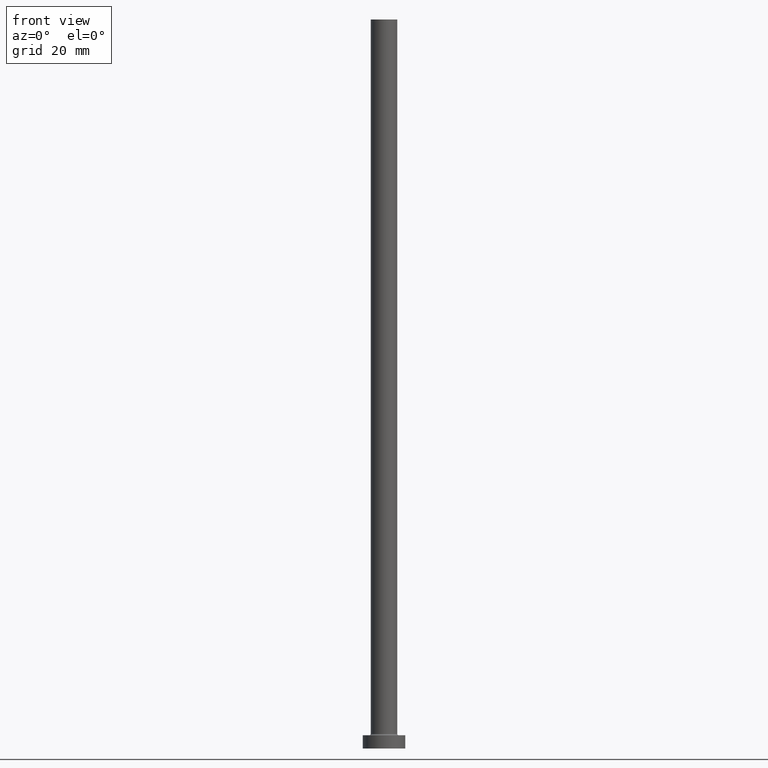
[diagram: clean part render]
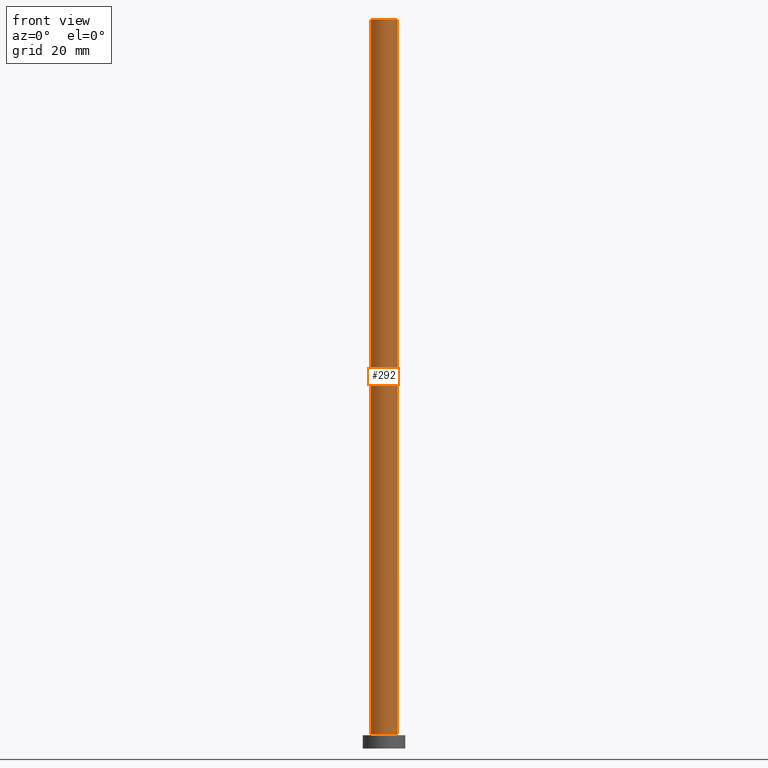
[diagram: same view with one face highlighted and labeled with its STEP entity id]
A machine part, front view. The second image highlights one B-rep face of the part: STEP entity #292.
In plain terms, the highlighted cylindrical surface (edge-blend (fillet) strip) has radius 5 mm, axis along (-0, -0, -1).
Its self-contained STEP definition (entity closure, byte-faithful):
#3 = EDGE_CURVE ( 'NONE', #291, #382, #365, .T. ) ;
#9 = DIRECTION ( 'NONE',  ( 0.000000000000000000, 0.000000000000000000, 1.000000000000000000 ) ) ;
#17 = EDGE_CURVE ( 'NONE', #164, #382, #116, .T. ) ;
#27 = CYLINDRICAL_SURFACE ( 'NONE', #111, 5.000000000000000000 ) ;
#32 = ORIENTED_EDGE ( 'NONE', *, *, #102, .F. ) ;
#49 = VERTEX_POINT ( 'NONE', #451 ) ;
#54 = DIRECTION ( 'NONE',  ( -0.000000000000000000, -0.000000000000000000, -1.000000000000000000 ) ) ;
#100 = CARTESIAN_POINT ( 'NONE',  ( 0.000000000000000000, 0.000000000000000000, 275.0000000000000000 ) ) ;
#102 = EDGE_CURVE ( 'NONE', #49, #164, #196, .T. ) ;
#111 = AXIS2_PLACEMENT_3D ( 'NONE', #100, #133, #278 ) ;
#114 = ORIENTED_EDGE ( 'NONE', *, *, #197, .T. ) ;
#115 = CARTESIAN_POINT ( 'NONE',  ( -5.000000000000000000, 0.000000000000000000, 275.0000000000000000 ) ) ;
#116 = LINE ( 'NONE', #153, #301 ) ;
#133 = DIRECTION ( 'NONE',  ( -0.000000000000000000, -0.000000000000000000, -1.000000000000000000 ) ) ;
#143 = CARTESIAN_POINT ( 'NONE',  ( 0.000000000000000000, 0.000000000000000000, 275.0000000000000000 ) ) ;
#153 = CARTESIAN_POINT ( 'NONE',  ( 5.000000000000000000, 6.123233995736766282E-16, 275.0000000000000000 ) ) ;
#155 = AXIS2_PLACEMENT_3D ( 'NONE', #143, #324, #186 ) ;
#156 = CARTESIAN_POINT ( 'NONE',  ( 0.000000000000000000, 0.000000000000000000, 5.500000000000005329 ) ) ;
#161 = ORIENTED_EDGE ( 'NONE', *, *, #3, .T. ) ;
#164 = VERTEX_POINT ( 'NONE', #322 ) ;
#172 = CARTESIAN_POINT ( 'NONE',  ( -5.000000000000000000, 0.000000000000000000, 5.500000000000005329 ) ) ;
#186 = DIRECTION ( 'NONE',  ( 1.000000000000000000, 0.000000000000000000, 0.000000000000000000 ) ) ;
#196 = CIRCLE ( 'NONE', #155, 5.000000000000000000 ) ;
#197 = EDGE_CURVE ( 'NONE', #49, #291, #368, .T. ) ;
#267 = ORIENTED_EDGE ( 'NONE', *, *, #17, .F. ) ;
#272 = AXIS2_PLACEMENT_3D ( 'NONE', #156, #9, #442 ) ;
#278 = DIRECTION ( 'NONE',  ( -1.000000000000000000, 0.000000000000000000, 0.000000000000000000 ) ) ;
#288 = CARTESIAN_POINT ( 'NONE',  ( 5.000000000000000000, 6.123233995736766282E-16, 5.500000000000005329 ) ) ;
#291 = VERTEX_POINT ( 'NONE', #172 ) ;
#292 = ADVANCED_FACE ( 'NONE', ( #456 ), #27, .T. ) ;
#301 = VECTOR ( 'NONE', #404, 1000.000000000000000 ) ;
#322 = CARTESIAN_POINT ( 'NONE',  ( 5.000000000000000000, 6.123233995736766282E-16, 275.0000000000000000 ) ) ;
#324 = DIRECTION ( 'NONE',  ( 0.000000000000000000, 0.000000000000000000, 1.000000000000000000 ) ) ;
#365 = CIRCLE ( 'NONE', #272, 5.000000000000000000 ) ;
#366 = EDGE_LOOP ( 'NONE', ( #267, #32, #114, #161 ) ) ;
#368 = LINE ( 'NONE', #115, #411 ) ;
#382 = VERTEX_POINT ( 'NONE', #288 ) ;
#404 = DIRECTION ( 'NONE',  ( -0.000000000000000000, -0.000000000000000000, -1.000000000000000000 ) ) ;
#411 = VECTOR ( 'NONE', #54, 1000.000000000000000 ) ;
#442 = DIRECTION ( 'NONE',  ( 1.000000000000000000, 0.000000000000000000, 0.000000000000000000 ) ) ;
#451 = CARTESIAN_POINT ( 'NONE',  ( -5.000000000000000000, 0.000000000000000000, 275.0000000000000000 ) ) ;
#456 = FACE_OUTER_BOUND ( 'NONE', #366, .T. ) ;